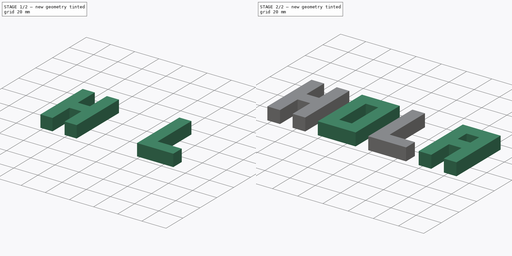
[diagram: build sequence overview — one tinted view per stage of 2, left to right]
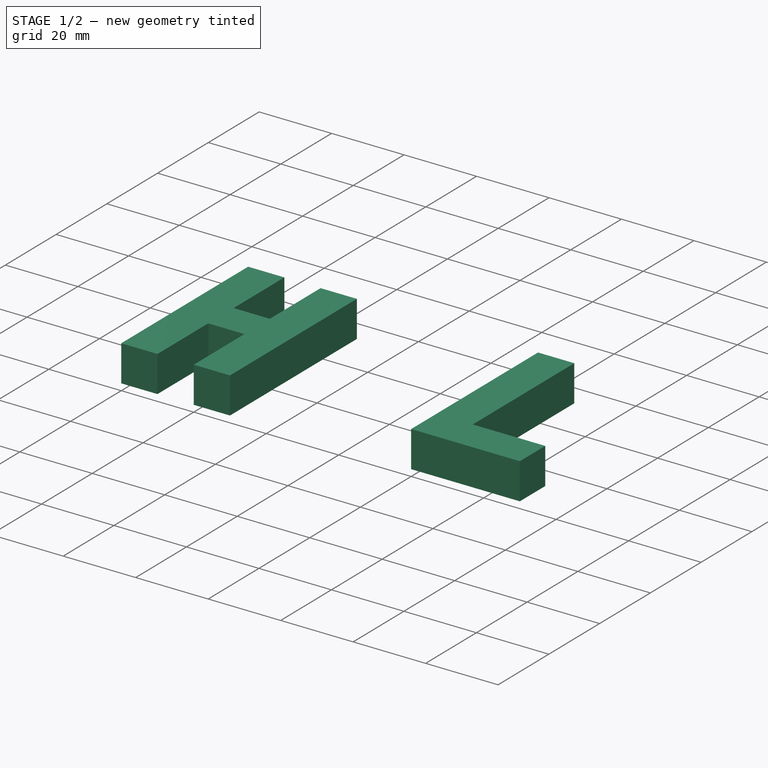
[diagram: stage 1 of 2 — iso view after this stage's code; geometry added in this stage tinted green]
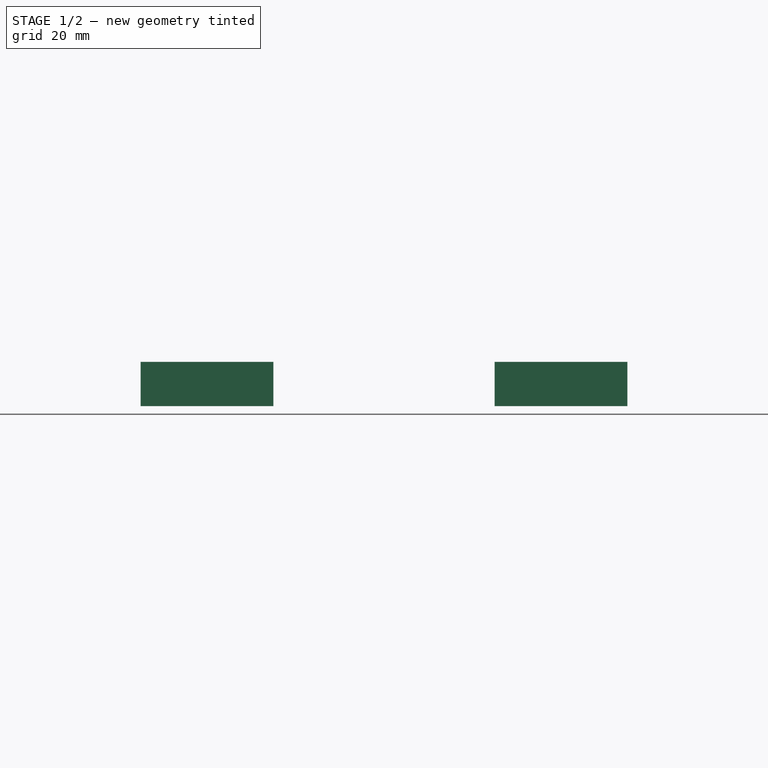
[diagram: stage 1 of 2 — front view after this stage's code; geometry added in this stage tinted green]
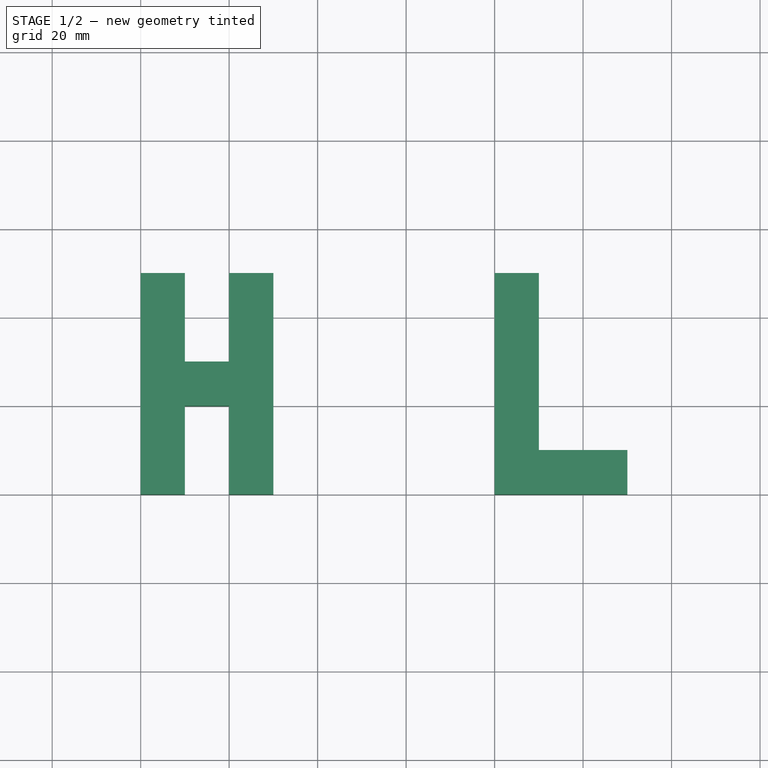
[diagram: stage 1 of 2 — top view after this stage's code; geometry added in this stage tinted green]
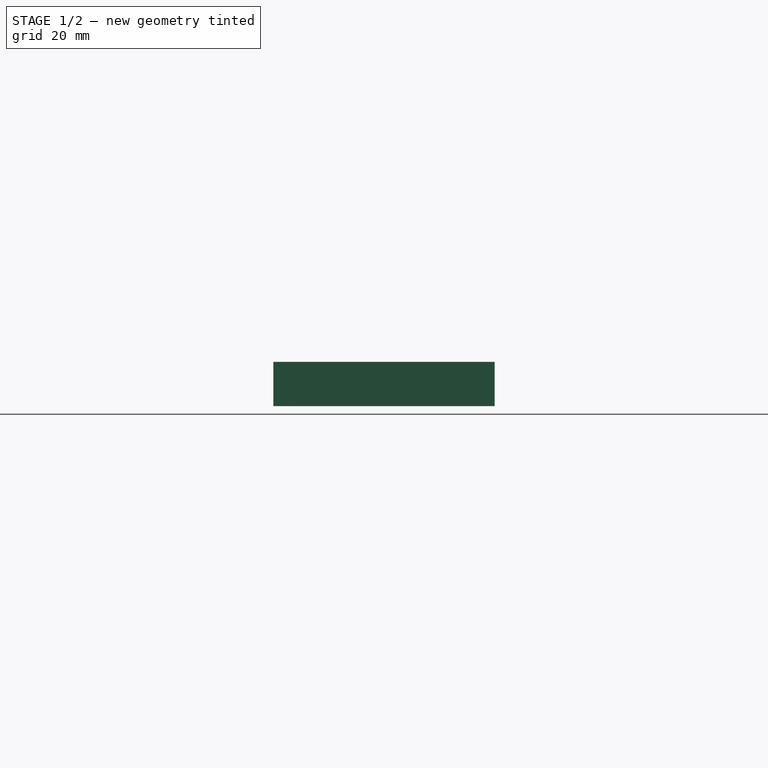
[diagram: stage 1 of 2 — right view after this stage's code; geometry added in this stage tinted green]
FCSTD DOCUMENT  (FreeCAD 0.21R33771 (Git))
Label: OJT1_T18R02_hola2
License: All rights reserved
LicenseURL: http://en.wikipedia.org/wiki/All_rights_reserved
objects: Sketcher::SketchObject×4, PartDesign::Pad×4, PartDesign::Body×4
note: 16 computed .brp shape members not serialized (recipe doc carries the construction recipe); baked Part::Feature solids carry a one-line shape summary decoded from their .brp

FEATURE [PartDesign::Body] Body001  label="O001"
  Group = -> [Sketch001,Pad001]
  Origin = -> Origin001
  Tip = -> Pad001
FEATURE [PartDesign::Pad] Pad002
  Direction = (0,0,1)
  Length = 10
  Length2 = 10
  Profile = -> Sketch
  ReferenceAxis = -> Sketch [N_Axis]
  Type = 0
FEATURE [PartDesign::Body] Body  label="H001"
  Group = -> [Sketch,Pad002]
  Origin = -> Origin
  Tip = -> Pad002
FEATURE [PartDesign::Pad] Pad003
  Direction = (0,0,1)
  Length = 10
  Length2 = 10
  Profile = -> Sketch002
  ReferenceAxis = -> Sketch002 [N_Axis]
  Type = 0
FEATURE [PartDesign::Body] Body002  label="L001"
  Group = -> [Sketch002,Pad003]
  Origin = -> Origin002
  Tip = -> Pad003
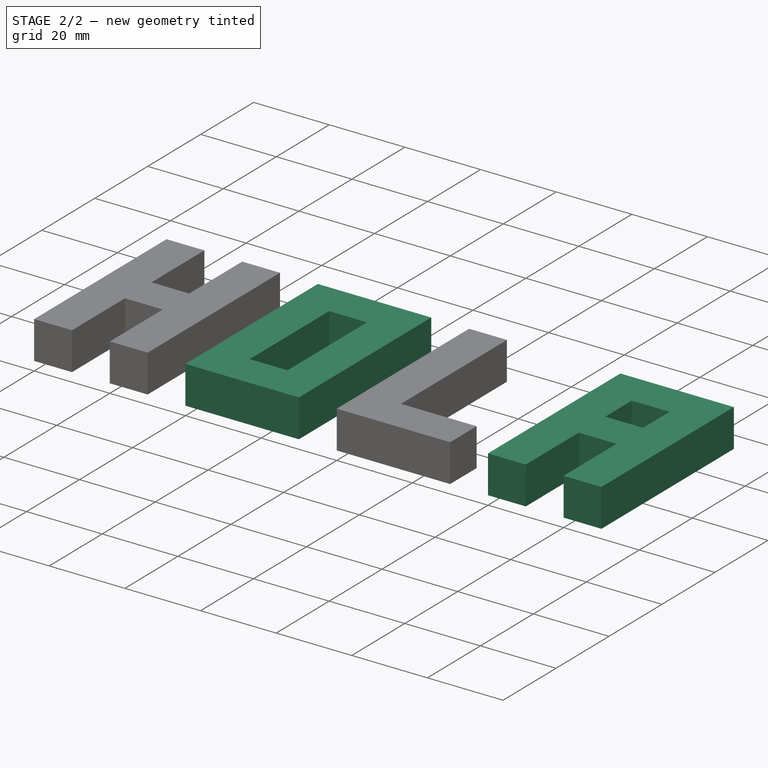
[diagram: stage 2 of 2 — iso view after this stage's code; geometry added in this stage tinted green]
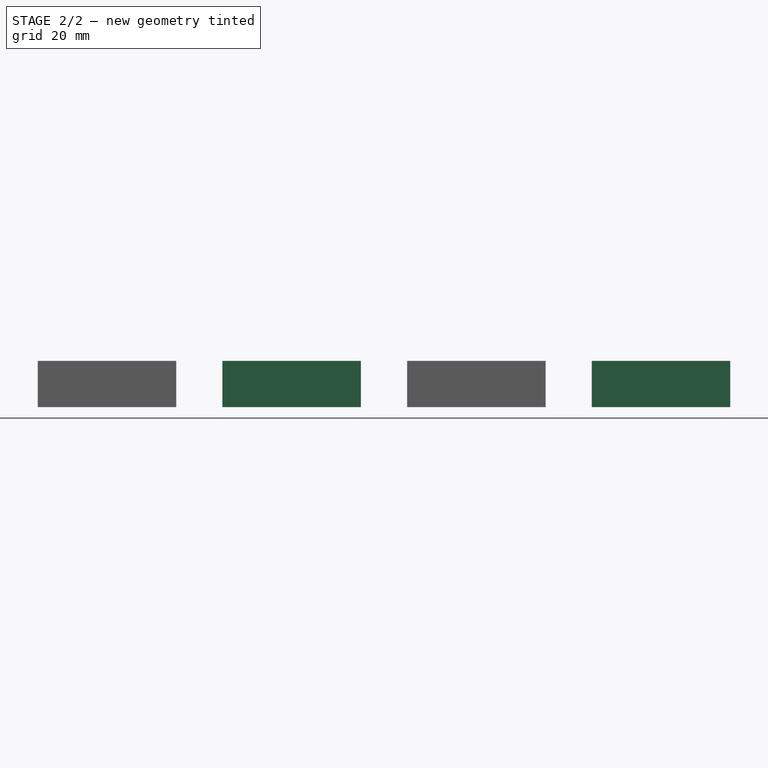
[diagram: stage 2 of 2 — front view after this stage's code; geometry added in this stage tinted green]
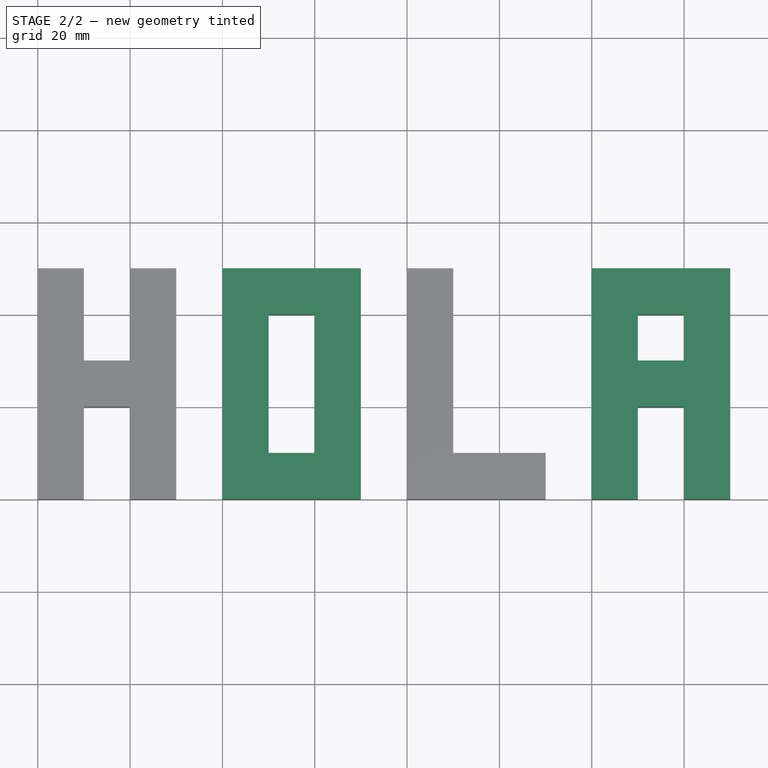
[diagram: stage 2 of 2 — top view after this stage's code; geometry added in this stage tinted green]
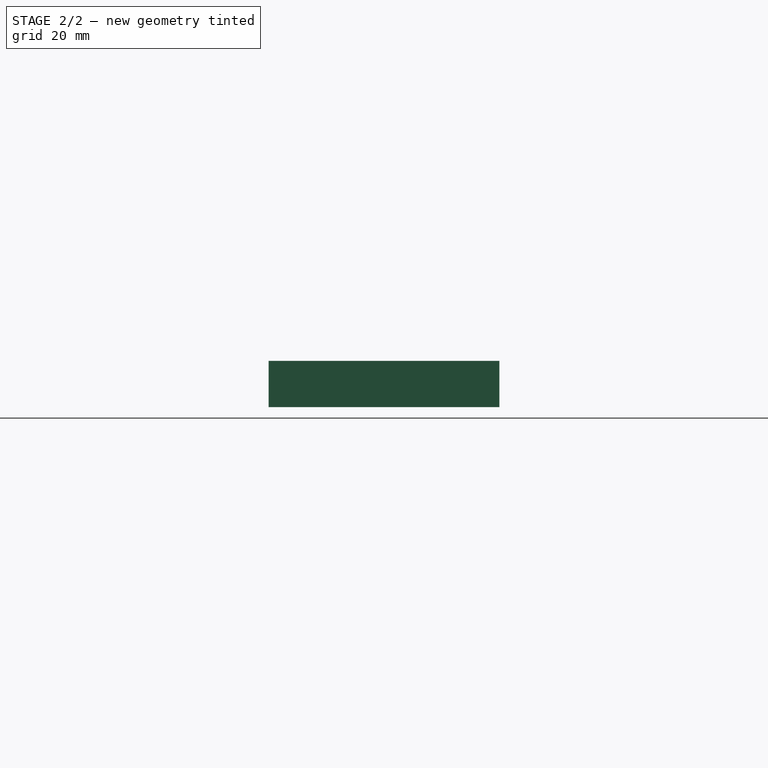
[diagram: stage 2 of 2 — right view after this stage's code; geometry added in this stage tinted green]
FEATURE [Sketcher::SketchObject] Sketch  label="H"
  FullyConstrained = true
  MapMode = 5
  Support = -> [XY_Plane]
  sketch-geometry (12):
    g0: LineSegment StartX=0 StartY=0 StartZ=0 EndX=0 EndY=50 EndZ=0
    g1: LineSegment StartX=0 StartY=50 StartZ=0 EndX=10 EndY=50 EndZ=0
    g2: LineSegment StartX=10 StartY=50 StartZ=0 EndX=10 EndY=30 EndZ=0
    g3: LineSegment StartX=10 StartY=30 StartZ=0 EndX=20 EndY=30 EndZ=0
    g4: LineSegment StartX=20 StartY=30 StartZ=0 EndX=20 EndY=50 EndZ=0
    g5: LineSegment StartX=20 StartY=50 StartZ=0 EndX=30 EndY=50 EndZ=0
    g6: LineSegment StartX=30 StartY=50 StartZ=0 EndX=30 EndY=0 EndZ=0
    g7: LineSegment StartX=30 StartY=0 StartZ=0 EndX=20 EndY=1.18015e-07 EndZ=0
    g8: LineSegment StartX=20 StartY=1.18015e-07 StartZ=0 EndX=20 EndY=20 EndZ=0
    g9: LineSegment StartX=20 StartY=20 StartZ=0 EndX=10 EndY=20 EndZ=0
    g10: LineSegment StartX=10 StartY=20 StartZ=0 EndX=10 EndY=1.18015e-07 EndZ=0
    g11: LineSegment StartX=10 StartY=1.18015e-07 StartZ=0 EndX=0 EndY=0 EndZ=0
  constraints (35):
    c: Vertical(g0)
    c: Coincident(g0,g1)
    c: Horizontal(g1)
    c: Coincident(g1,g2)
    c: Vertical(g2)
    c: Coincident(g2,g3)
    c: Horizontal(g3)
    c: Coincident(g3,g4)
    c: Vertical(g4)
    c: Coincident(g4,g5)
    c: Horizontal(g5)
    c: Coincident(g5,g6)
    c: Vertical(g6)
    c: Coincident(g6,g7)
    c: Coincident(g7,g8)
    c: Vertical(g8)
    c: Coincident(g8,g9)
    c: Horizontal(g9)
    c: Coincident(g9,g10)
    c: Vertical(g10)
    c: Coincident(g10,g11)
    c: Coincident(g11,g0)
    c: DistanceY(g0,g0) = 50
    c: DistanceX(g0,g1) = 10
    c: DistanceY(g9,g2) = 10
    c: Equal(g1,g5)
    c: Equal(g5,g7)
    c: Equal(g7,g11)
    c: Equal(g4,g8)
    c: Equal(g0,g6)
    c: Coincident(g0,g-1)
    c: Equal(g3,g9)
    c: Equal(g2,g4)
    c: Equal(g4,g10)
    c: DistanceX(g10,g7) = 10
FEATURE [Sketcher::SketchObject] Sketch001  label="O"
  FullyConstrained = true
  MapMode = 5
  Support = -> [XY_Plane001]
  sketch-geometry (8):
    g0: LineSegment StartX=40 StartY=50 StartZ=0 EndX=70 EndY=50 EndZ=0
    g1: LineSegment StartX=70 StartY=50 StartZ=0 EndX=70 EndY=0 EndZ=0
    g2: LineSegment StartX=70 StartY=0 StartZ=0 EndX=40 EndY=0 EndZ=0
    g3: LineSegment StartX=40 StartY=0 StartZ=0 EndX=40 EndY=50 EndZ=0
    g4: LineSegment StartX=50 StartY=40 StartZ=0 EndX=60 EndY=40 EndZ=0
    g5: LineSegment StartX=60 StartY=40 StartZ=0 EndX=60 EndY=10 EndZ=0
    g6: LineSegment StartX=60 StartY=10 StartZ=0 EndX=50 EndY=10 EndZ=0
    g7: LineSegment StartX=50 StartY=10 StartZ=0 EndX=50 EndY=40 EndZ=0
  constraints (24):
    c: Coincident(g0,g1)
    c: Coincident(g1,g2)
    c: Coincident(g4,g5)
    c: Coincident(g5,g6)
    c: Coincident(g6,g7)
    c: Coincident(g4,g7)
    c: Horizontal(g4)
    c: Horizontal(g6)
    c: Horizontal(g2)
    c: Horizontal(g0)
    c: Vertical(g7)
    c: Vertical(g5)
    c: Vertical(g1)
    c: DistanceX(g0,g0) = 30
    c: DistanceY(g1,g0) = 50
    c: DistanceY(g2,g6) = 10
    c: DistanceY(g6,g4) = 30
    c: DistanceX(g4,g4) = 10
    c: DistanceX(g2,g6) = 10
    c: Vertical(g3)
    c: Coincident(g0,g3)
    c: Coincident(g2,g3)
    c: DistanceY(g-1,g0) = 50
    c: Block(g6)
FEATURE [Sketcher::SketchObject] Sketch002  label="L"
  FullyConstrained = true
  MapMode = 5
  Support = -> [XY_Plane002]
  sketch-geometry (6):
    g0: LineSegment StartX=80 StartY=50 StartZ=0 EndX=80 EndY=0 EndZ=0
    g1: LineSegment StartX=80 StartY=0 StartZ=0 EndX=110 EndY=0 EndZ=0
    g2: LineSegment StartX=110 StartY=0 StartZ=0 EndX=110 EndY=10 EndZ=0
    g3: LineSegment StartX=110 StartY=10 StartZ=0 EndX=90 EndY=10 EndZ=0
    g4: LineSegment StartX=90 StartY=10 StartZ=0 EndX=90 EndY=50 EndZ=0
    g5: LineSegment StartX=90 StartY=50 StartZ=0 EndX=80 EndY=50 EndZ=0
  constraints (18):
    c: Coincident(g0,g1)
    c: Coincident(g1,g2)
    c: Coincident(g2,g3)
    c: Coincident(g3,g4)
    c: Coincident(g4,g5)
    c: Coincident(g5,g0)
    c: Vertical(g0)
    c: Vertical(g4)
    c: Vertical(g2)
    c: Horizontal(g5)
    c: Horizontal(g3)
    c: Horizontal(g1)
    c: DistanceX(g0,g1) = 30
    c: DistanceX(g0,g4) = 10
    c: DistanceX(g-1,g0) = 80
    c: DistanceY(g1,g2) = 10
    c: DistanceY(g-1,g0) = 50
    c: DistanceY(g-1,g3) = 10
FEATURE [Sketcher::SketchObject] Sketch003  label="A"
  AttachmentOffset = pos=(120,0,0) rot=(0,0,1;0rad)
  FullyConstrained = true
  MapMode = 5
  Placement = pos=(120,0,0) rot=(0,0,1;0rad)
  Support = -> [XY_Plane003]
  sketch-geometry (12):
    g0: LineSegment StartX=0 StartY=0 StartZ=0 EndX=0 EndY=50 EndZ=0
    g1: LineSegment StartX=30 StartY=50 StartZ=0 EndX=30 EndY=0 EndZ=0
    g2: LineSegment StartX=0 StartY=50 StartZ=0 EndX=30 EndY=50 EndZ=0
    g3: LineSegment StartX=0 StartY=0 StartZ=0 EndX=10 EndY=0 EndZ=0
    g4: LineSegment StartX=10 StartY=20 StartZ=0 EndX=10 EndY=0 EndZ=0
    g5: LineSegment StartX=20 StartY=20 StartZ=0 EndX=20 EndY=0 EndZ=0
    g6: LineSegment StartX=20 StartY=0 StartZ=0 EndX=30 EndY=0 EndZ=0
    g7: LineSegment StartX=10 StartY=40 StartZ=0 EndX=20 EndY=40 EndZ=0
    g8: LineSegment StartX=10 StartY=30 StartZ=0 EndX=20 EndY=30 EndZ=0
    g9: LineSegment StartX=20 StartY=40 StartZ=0 EndX=20 EndY=30 EndZ=0
    g10: LineSegment StartX=10 StartY=40 StartZ=0 EndX=10 EndY=30 EndZ=0
    g11: LineSegment StartX=10 StartY=20 StartZ=0 EndX=20 EndY=20 EndZ=0
  constraints (35):
    c: Coincident(g0,g2)
    c: Coincident(g1,g2)
    c: Coincident(g7,g10)
    c: Coincident(g7,g9)
    c: Coincident(g8,g10)
    c: Coincident(g8,g9)
    c: Coincident(g4,g11)
    c: Coincident(g5,g11)
    c: Coincident(g1,g6)
    c: Coincident(g5,g6)
    c: Coincident(g3,g4)
    c: Coincident(g0,g3)
    c: Coincident(g0,g-1)
    c: DistanceY(g0,g0) = 50
    c: DistanceX(g0,g1) = 30
    c: Horizontal(g2)
    c: Horizontal(g7)
    c: Horizontal(g8)
    c: Horizontal(g11)
    c: Horizontal(g3)
    c: Horizontal(g6)
    c: Vertical(g0)
    c: Vertical(g10)
    c: Vertical(g9)
    c: Vertical(g1)
    c: Vertical(g5)
    c: Vertical(g4)
    c: DistanceX(g3,g5) = 10
    c: DistanceX(g0,g3) = 10
    c: Equal(g0,g1)
    c: DistanceX(g7,g7) = 10
    c: DistanceY(g8,g7) = 10
    c: DistanceY(g0,g5) = 20
    c: DistanceY(g0,g8) = 30
    c: DistanceX(g0,g7) = 10
FEATURE [PartDesign::Pad] Pad
  Direction = (0,0,1)
  Length = 10
  Length2 = 10
  Profile = -> Sketch003
  ReferenceAxis = -> Sketch003 [N_Axis]
  Type = 0
FEATURE [PartDesign::Body] Body003  label="A001"
  Group = -> [Sketch003,Pad]
  Origin = -> Origin003
  Tip = -> Pad
FEATURE [PartDesign::Pad] Pad001
  Direction = (0,0,1)
  Length = 10
  Length2 = 10
  Profile = -> Sketch001
  ReferenceAxis = -> Sketch001 [N_Axis]
  Type = 0
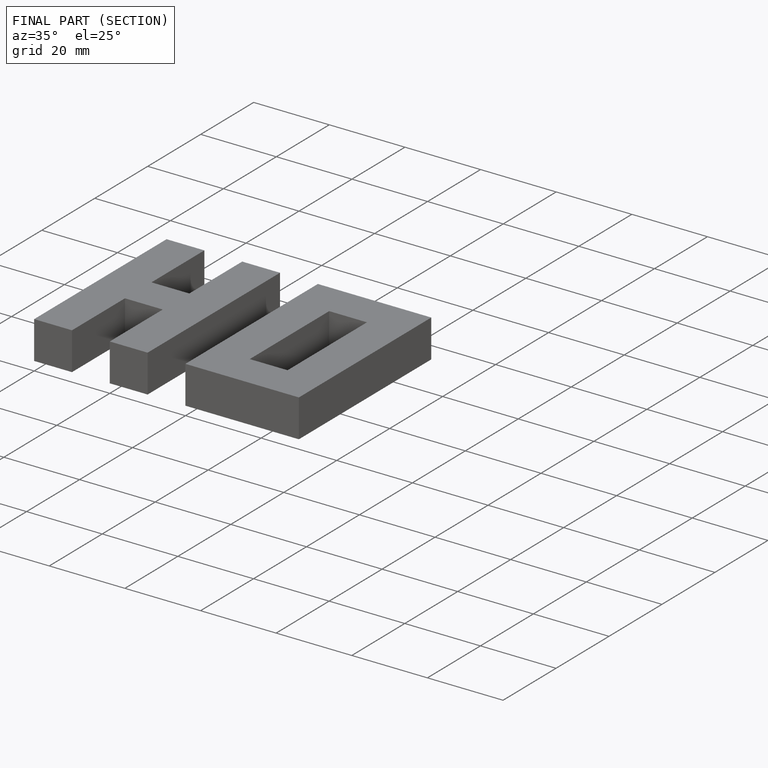
[diagram: finished part — half-section view (interior)]
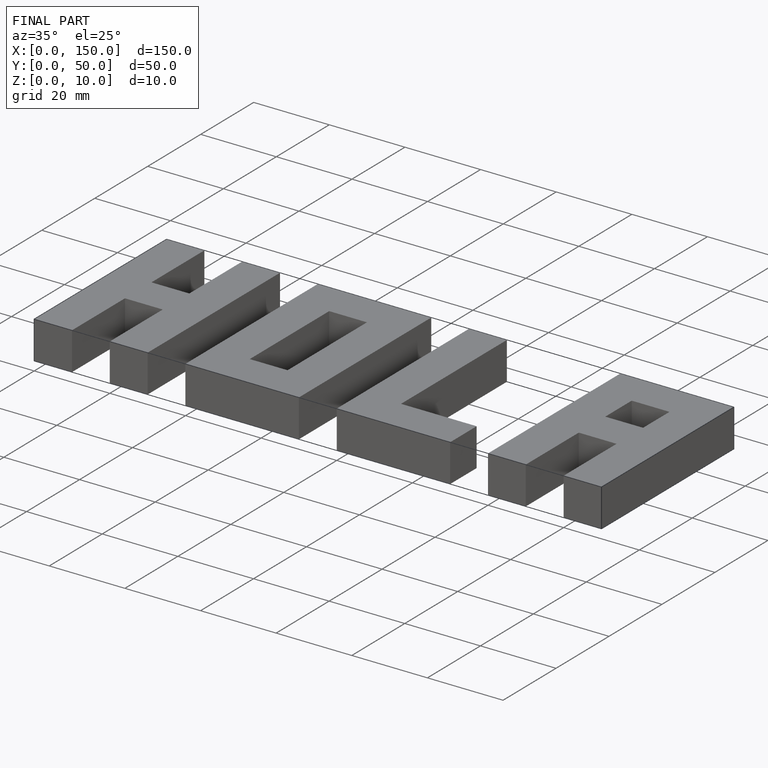
[diagram: finished part — iso view with bounding-box wireframe]
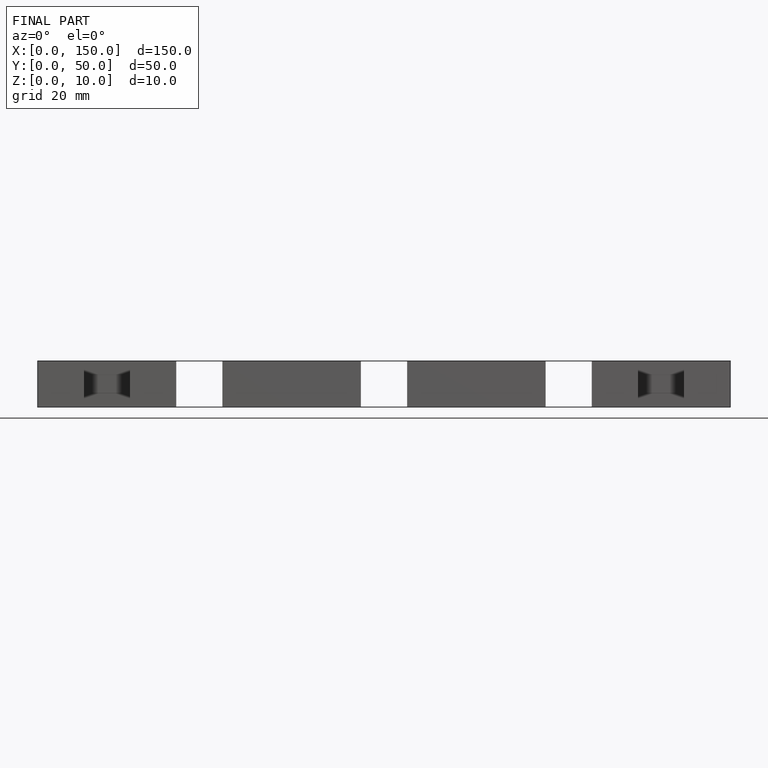
[diagram: finished part — front view with bounding-box wireframe]
